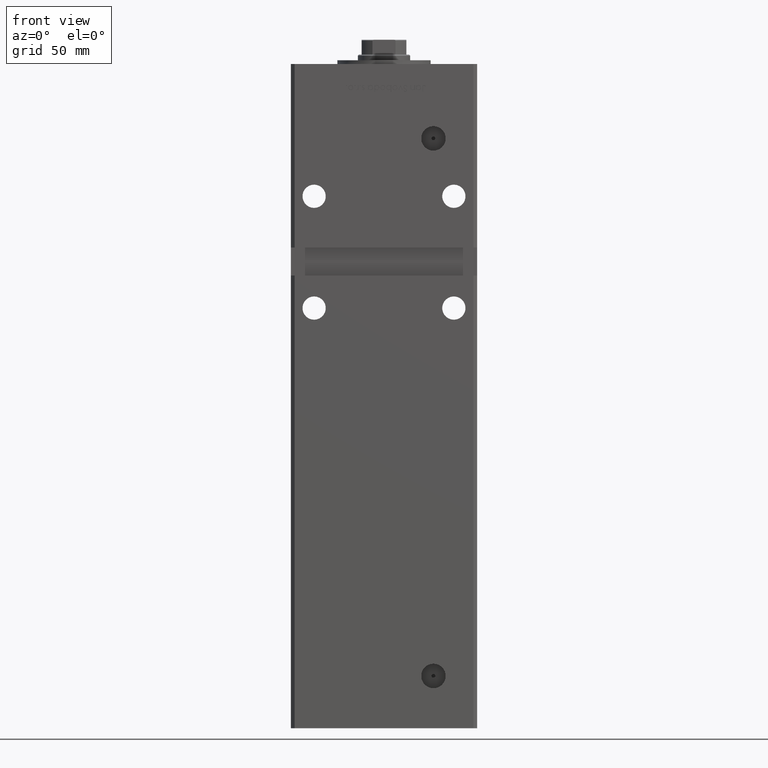
[diagram: clean part render]
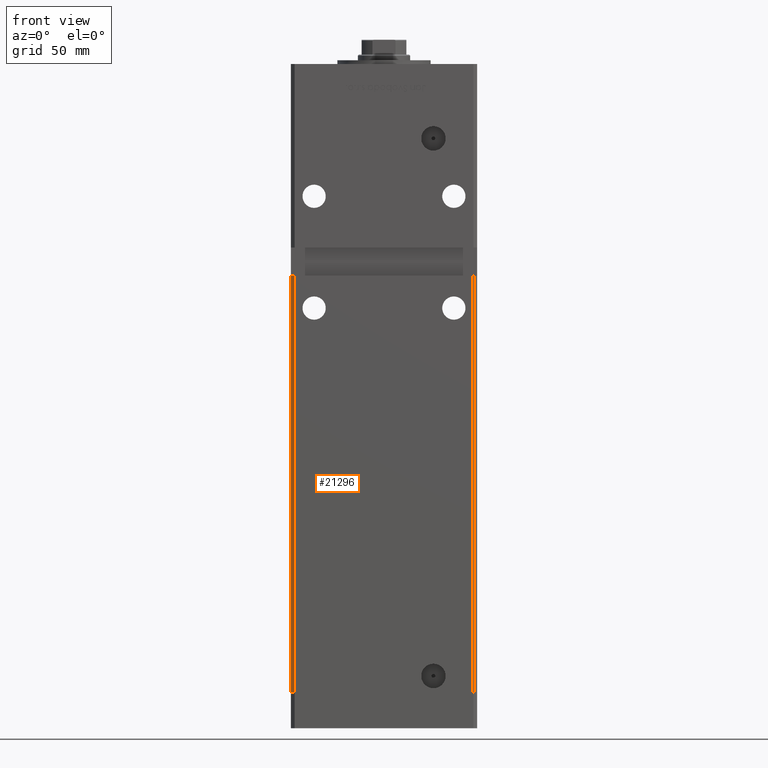
[diagram: same view with one face highlighted and labeled with its STEP entity id]
A machine part, front view. The second image highlights one B-rep face of the part: STEP entity #21296.
In plain terms, the highlighted planar face has unit normal (0.7071, 0.7071, 0).
Its self-contained STEP definition (entity closure, byte-faithful):
#525 = CARTESIAN_POINT ( 'NONE',  ( -47.99999999999998579, -43.50000000000000000, 0.000000000000000000 ) ) ;
#3930 = VERTEX_POINT ( 'NONE', #49762 ) ;
#5179 = VERTEX_POINT ( 'NONE', #525 ) ;
#5728 = CARTESIAN_POINT ( 'NONE',  ( -47.99999999999998579, -43.50000000000000000, 318.5000000000000000 ) ) ;
#10513 = EDGE_CURVE ( 'NONE', #3930, #45656, #25151, .T. ) ;
#11425 = CARTESIAN_POINT ( 'NONE',  ( -49.99999999999998579, -41.49999999999999289, 0.000000000000000000 ) ) ;
#16279 = EDGE_CURVE ( 'NONE', #45656, #45249, #51952, .T. ) ;
#18006 = VECTOR ( 'NONE', #25649, 1000.000000000000000 ) ;
#21296 = ADVANCED_FACE ( 'NONE', ( #47132 ), #38786, .F. ) ;
#21881 = CARTESIAN_POINT ( 'NONE',  ( -49.99999999999998579, -41.49999999999999289, 0.000000000000000000 ) ) ;
#25151 = LINE ( 'NONE', #37770, #46963 ) ;
#25311 = VECTOR ( 'NONE', #27824, 1000.000000000000114 ) ;
#25649 = DIRECTION ( 'NONE',  ( -0.000000000000000000, -0.000000000000000000, -1.000000000000000000 ) ) ;
#27824 = DIRECTION ( 'NONE',  ( 0.7071067811865474617, -0.7071067811865474617, 0.000000000000000000 ) ) ;
#28697 = CARTESIAN_POINT ( 'NONE',  ( -49.99999999999998579, -41.49999999999999289, 224.0000000000000000 ) ) ;
#29943 = DIRECTION ( 'NONE',  ( 0.7071067811865475727, 0.7071067811865475727, -0.000000000000000000 ) ) ;
#31007 = CARTESIAN_POINT ( 'NONE',  ( -49.99999999999998579, -41.49999999999999289, 318.5000000000000000 ) ) ;
#31837 = EDGE_LOOP ( 'NONE', ( #41200, #38372, #51809, #39464 ) ) ;
#36360 = EDGE_CURVE ( 'NONE', #3930, #5179, #50082, .T. ) ;
#37770 = CARTESIAN_POINT ( 'NONE',  ( -49.99999999999998579, -41.49999999999999289, 224.0000000000000000 ) ) ;
#38024 = DIRECTION ( 'NONE',  ( -0.7071067811865474617, 0.7071067811865474617, 0.000000000000000000 ) ) ;
#38372 = ORIENTED_EDGE ( 'NONE', *, *, #10513, .T. ) ;
#38786 = PLANE ( 'NONE',  #39943 ) ;
#39464 = ORIENTED_EDGE ( 'NONE', *, *, #49456, .T. ) ;
#39943 = AXIS2_PLACEMENT_3D ( 'NONE', #42831, #29943, #50887 ) ;
#41200 = ORIENTED_EDGE ( 'NONE', *, *, #36360, .F. ) ;
#42831 = CARTESIAN_POINT ( 'NONE',  ( -49.99999999999998579, -41.49999999999999289, 318.5000000000000000 ) ) ;
#45249 = VERTEX_POINT ( 'NONE', #21881 ) ;
#45656 = VERTEX_POINT ( 'NONE', #28697 ) ;
#46963 = VECTOR ( 'NONE', #38024, 1000.000000000000114 ) ;
#47132 = FACE_OUTER_BOUND ( 'NONE', #31837, .T. ) ;
#49260 = VECTOR ( 'NONE', #51171, 1000.000000000000000 ) ;
#49456 = EDGE_CURVE ( 'NONE', #45249, #5179, #52809, .T. ) ;
#49762 = CARTESIAN_POINT ( 'NONE',  ( -47.99999999999998579, -43.50000000000000000, 224.0000000000000000 ) ) ;
#50082 = LINE ( 'NONE', #5728, #18006 ) ;
#50887 = DIRECTION ( 'NONE',  ( -0.7071067811865474617, 0.7071067811865474617, 0.000000000000000000 ) ) ;
#51171 = DIRECTION ( 'NONE',  ( -0.000000000000000000, -0.000000000000000000, -1.000000000000000000 ) ) ;
#51809 = ORIENTED_EDGE ( 'NONE', *, *, #16279, .T. ) ;
#51952 = LINE ( 'NONE', #31007, #49260 ) ;
#52809 = LINE ( 'NONE', #11425, #25311 ) ;